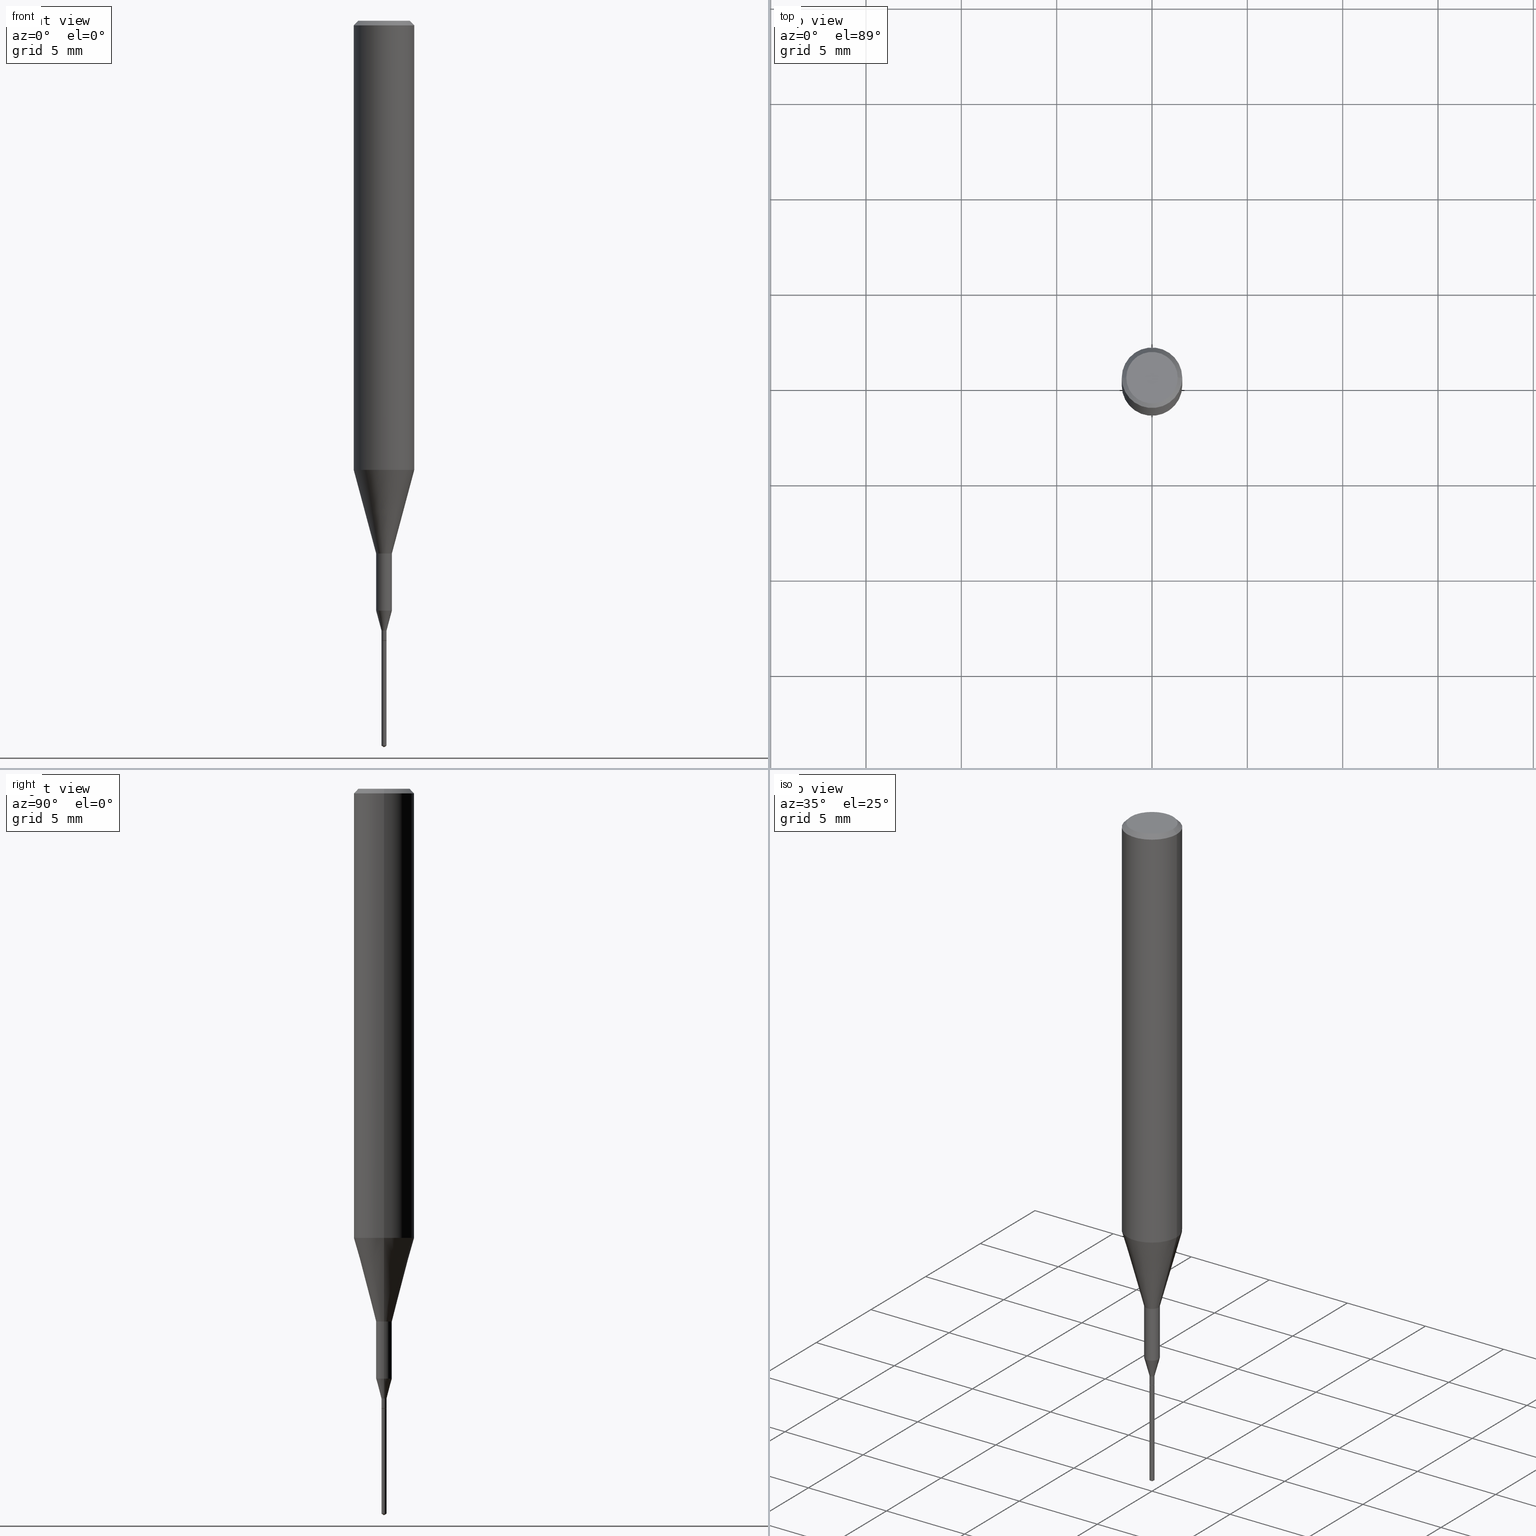
[diagram: canonical four-view strip — front | top / right | iso, engineering-drawing reading convention]
A machine part, canonical four-view strip (front | top / right | iso — engineering-drawing reading convention). The complete STEP part file that produces these views, byte-faithful:
ISO-10303-21;
HEADER;
FILE_DESCRIPTION (( 'STEP AP203' ),
    '1' );
FILE_NAME ('07093.STEP',
    '2024-04-19T13:29:51',
    ( '' ),
    ( '' ),
    'SwSTEP 2.0',
    'SolidWorks 2023',
    '' );
FILE_SCHEMA (( 'CONFIG_CONTROL_DESIGN' ));
ENDSEC;

DATA;
#1 = ORIENTED_EDGE ( 'NONE', *, *, #232, .T. ) ;
#2 = APPROVAL_DATE_TIME ( #583, #329 ) ;
#3 = CARTESIAN_POINT ( 'NONE',  ( -9.272647440831351840E-28, 1.320560130707024342E-13, 37.87007874015748143 ) ) ;
#4 = EDGE_CURVE ( 'NONE', #571, #561, #247, .T. ) ;
#5 = VERTEX_POINT ( 'NONE', #340 ) ;
#6 = CARTESIAN_POINT ( 'NONE',  ( 0.01624999999999999709, -3.954102616239861778E-15, -1.100000000000000089 ) ) ;
#7 = AXIS2_PLACEMENT_3D ( 'NONE', #9, #560, #520 ) ;
#8 = ORIENTED_EDGE ( 'NONE', *, *, #544, .F. ) ;
#9 = CARTESIAN_POINT ( 'NONE',  ( 0.000000000000000000, 0.000000000000000000, 0.000000000000000000 ) ) ;
#10 = ORIENTED_EDGE ( 'NONE', *, *, #64, .T. ) ;
#11 = DIRECTION ( 'NONE',  ( 1.000000000000000000, -6.982962677686243834E-15, 0.000000000000000000 ) ) ;
#12 = ORIENTED_EDGE ( 'NONE', *, *, #124, .F. ) ;
#13 = DIRECTION ( 'NONE',  ( -2.445468806185136597E-29, 3.491481338843145583E-15, 1.000000000000000000 ) ) ;
#14 = ADVANCED_FACE ( 'NONE', ( #433 ), #475, .F. ) ;
#15 = CARTESIAN_POINT ( 'NONE',  ( 2.267909797027042920E-29, -3.237974131778804114E-15, -0.9273926501499395458 ) ) ;
#16 = CONICAL_SURFACE ( 'NONE', #50, 65.52281426576408307, 1.029744258676625224 ) ;
#17 = VECTOR ( 'NONE', #489, 39.37007874015748143 ) ;
#18 = DIRECTION ( 'NONE',  ( 1.000000000000000000, -6.982962677686266711E-15, 4.876176775795935232E-29 ) ) ;
#19 = ORIENTED_EDGE ( 'NONE', *, *, #253, .F. ) ;
#20 = CARTESIAN_POINT ( 'NONE',  ( 3.128977337513882580E-29, -4.467350373049805126E-15, -1.279500000000000082 ) ) ;
#21 = DIRECTION ( 'NONE',  ( 1.000000000000000000, -6.982962677686265922E-15, 0.000000000000000000 ) ) ;
#22 = EDGE_CURVE ( 'NONE', #168, #323, #252, .T. ) ;
#23 = DIRECTION ( 'NONE',  ( -2.445468806185136597E-29, 3.491481338843145583E-15, 1.000000000000000000 ) ) ;
#24 = ORIENTED_EDGE ( 'NONE', *, *, #203, .F. ) ;
#25 = AXIS2_PLACEMENT_3D ( 'NONE', #451, #162, #41 ) ;
#26 = DIRECTION ( 'NONE',  ( -2.445468806185136877E-29, 3.491481338843145188E-15, 1.000000000000000000 ) ) ;
#27 = FACE_OUTER_BOUND ( 'NONE', #328, .T. ) ;
#28 = ADVANCED_FACE ( 'NONE', ( #485 ), #438, .T. ) ;
#29 = DIRECTION ( 'NONE',  ( 2.448441422466597469E-29, -3.487224383137281571E-15, -1.000000000000000000 ) ) ;
#30 = CARTESIAN_POINT ( 'NONE',  ( -0.06250000000000000000, 4.037025298037369491E-16, -0.009375000000000063838 ) ) ;
#31 = CARTESIAN_POINT ( 'NONE',  ( -0.01624999999999999709, -3.931071922978147770E-15, -1.100000000000000089 ) ) ;
#32 = ORIENTED_EDGE ( 'NONE', *, *, #337, .T. ) ;
#33 = CALENDAR_DATE ( 2024, 19, 4 ) ;
#34 = AXIS2_PLACEMENT_3D ( 'NONE', #285, #468, #379 ) ;
#35 = PRODUCT_DEFINITION_FORMATION_WITH_SPECIFIED_SOURCE ( 'ANY', '', #267, .NOT_KNOWN. ) ;
#36 = APPROVAL_DATE_TIME ( #40, #522 ) ;
#37 = EDGE_CURVE ( 'NONE', #323, #99, #349, .T. ) ;
#38 = ORIENTED_EDGE ( 'NONE', *, *, #161, .F. ) ;
#39 = ORIENTED_EDGE ( 'NONE', *, *, #586, .F. ) ;
#40 = DATE_AND_TIME ( #498, #215 ) ;
#41 = DIRECTION ( 'NONE',  ( 1.000000000000000000, -6.982962677686296687E-15, 0.000000000000000000 ) ) ;
#42 = VECTOR ( 'NONE', #26, 39.37007874015748143 ) ;
#43 = EDGE_LOOP ( 'NONE', ( #435, #10, #311, #467 ) ) ;
#44 = COORDINATED_UNIVERSAL_TIME_OFFSET ( 5, 0, .BEHIND. ) ;
#45 = CARTESIAN_POINT ( 'NONE',  ( 3.730349362744185783E-17, 0.005249999999994773604, -1.496845481750105122 ) ) ;
#46 = ORIENTED_EDGE ( 'NONE', *, *, #149, .F. ) ;
#47 = CARTESIAN_POINT ( 'NONE',  ( 0.005250000000000032419, -4.432435559661373477E-15, -1.259000000000000119 ) ) ;
#48 = ORIENTED_EDGE ( 'NONE', *, *, #488, .F. ) ;
#49 = CARTESIAN_POINT ( 'NONE',  ( 3.130200071916974821E-29, -4.469096113719226630E-15, -1.280000000000000027 ) ) ;
#50 = AXIS2_PLACEMENT_3D ( 'NONE', #3, #79, #264 ) ;
#51 = DIMENSIONAL_EXPONENTS ( 1.000000000000000000, 0.000000000000000000, 0.000000000000000000, 0.000000000000000000, 0.000000000000000000, 0.000000000000000000, 0.000000000000000000 ) ;
#52 = APPROVAL_PERSON_ORGANIZATION ( #221, #329, #461 ) ;
#53 = EDGE_LOOP ( 'NONE', ( #557, #187 ) ) ;
#54 = CARTESIAN_POINT ( 'NONE',  ( 2.267909797027042920E-29, -3.237974131778804114E-15, -0.9273926501499395458 ) ) ;
#55 = ORIENTED_EDGE ( 'NONE', *, *, #97, .F. ) ;
#56 = EDGE_CURVE ( 'NONE', #5, #142, #302, .T. ) ;
#57 = DIRECTION ( 'NONE',  ( 1.000000000000000000, -6.982962677686177569E-15, 0.000000000000000000 ) ) ;
#58 = DIRECTION ( 'NONE',  ( -2.445468806185136597E-29, 3.491481338843145583E-15, 1.000000000000000000 ) ) ;
#59 = CARTESIAN_POINT ( 'NONE',  ( 2.292627005798581499E-31, -3.273263755165471417E-17, -0.009375000000000063838 ) ) ;
#60 = CARTESIAN_POINT ( 'NONE',  ( 0.005249999999999992520, -4.504010927107658279E-15, -1.279500000000000082 ) ) ;
#61 = AXIS2_PLACEMENT_3D ( 'NONE', #66, #432, #113 ) ;
#62 = CC_DESIGN_APPROVAL ( #532, ( #35 ) ) ;
#63 = CARTESIAN_POINT ( 'NONE',  ( -0.01625000000000000056, -4.136977567789851624E-15, -1.217947441116742580 ) ) ;
#64 = EDGE_CURVE ( 'NONE', #142, #493, #487, .T. ) ;
#65 = CARTESIAN_POINT ( 'NONE',  ( -0.004750000000000000749, -4.435345333770622433E-15, -1.280000000000000027 ) ) ;
#66 = CARTESIAN_POINT ( 'NONE',  ( 3.130200071916974821E-29, -4.469096113719226630E-15, -1.280000000000000027 ) ) ;
#67 = CC_DESIGN_PERSON_AND_ORGANIZATION_ASSIGNMENT ( #220, #129, ( #267 ) ) ;
#68 = EDGE_LOOP ( 'NONE', ( #465, #32, #206, #308 ) ) ;
#69 = CYLINDRICAL_SURFACE ( 'NONE', #569, 0.005250000000000012469 ) ;
#70 = CARTESIAN_POINT ( 'NONE',  ( 0.06250000000000005551, -4.364351673553920638E-16, 3.047610484872462323E-30 ) ) ;
#71 = EDGE_CURVE ( 'NONE', #493, #99, #286, .T. ) ;
#72 = CIRCLE ( 'NONE', #244, 0.005250000000000001193 ) ;
#74 = AXIS2_PLACEMENT_3D ( 'NONE', #574, #23, #121 ) ;
#73 = CARTESIAN_POINT ( 'NONE',  ( 2.978452474824002480E-29, -4.252440762350867810E-15, -1.217947441116742580 ) ) ;
#75 = CARTESIAN_POINT ( 'NONE',  ( 0.000000000000000000, 0.000000000000000000, 0.000000000000000000 ) ) ;
#76 = DIRECTION ( 'NONE',  ( -2.448441422466597749E-29, 3.487224383137281571E-15, 1.000000000000000000 ) ) ;
#77 = CARTESIAN_POINT ( 'NONE',  ( 0.01625000000000000056, -4.365913905863269486E-15, -1.217947441116742580 ) ) ;
#78 = CARTESIAN_POINT ( 'NONE',  ( 2.292627005798581499E-31, -3.273263755165471417E-17, -0.009375000000000063838 ) ) ;
#79 = DIRECTION ( 'NONE',  ( -2.448441422466597749E-29, 3.487224383137281571E-15, 1.000000000000000000 ) ) ;
#80 = ADVANCED_BREP_SHAPE_REPRESENTATION ( '07093', ( #265, #464, #126 ), #384 ) ;
#81 = ORIENTED_EDGE ( 'NONE', *, *, #555, .T. ) ;
#82 = CONICAL_SURFACE ( 'NONE', #182, 0.01625000000000000056, 0.2617993877991494078 ) ;
#83 = AXIS2_PLACEMENT_3D ( 'NONE', #20, #534, #526 ) ;
#84 = EDGE_CURVE ( 'NONE', #561, #387, #72, .T. ) ;
#85 = COORDINATED_UNIVERSAL_TIME_OFFSET ( 5, 0, .BEHIND. ) ;
#86 =( NAMED_UNIT ( * ) PLANE_ANGLE_UNIT ( ) SI_UNIT ( $, .RADIAN. ) );
#87 = EDGE_LOOP ( 'NONE', ( #431, #81, #233, #39 ) ) ;
#88 = DIRECTION ( 'NONE',  ( -5.985567269335837150E-15, -0.8571673007020953472, 0.5150380749100822442 ) ) ;
#89 = AXIS2_PLACEMENT_3D ( 'NONE', #466, #402, #261 ) ;
#90 = ORIENTED_EDGE ( 'NONE', *, *, #299, .F. ) ;
#91 = LINE ( 'NONE', #576, #401 ) ;
#92 = ORIENTED_EDGE ( 'NONE', *, *, #299, .T. ) ;
#93 = DIRECTION ( 'NONE',  ( 1.000000000000000000, -6.982962677686177569E-15, 0.000000000000000000 ) ) ;
#94 = ORIENTED_EDGE ( 'NONE', *, *, #185, .F. ) ;
#95 = DIRECTION ( 'NONE',  ( -2.445468806185136597E-29, 3.491481338843145583E-15, 1.000000000000000000 ) ) ;
#96 = CONICAL_SURFACE ( 'NONE', #587, 0.06250000000000000000, 0.7853981633974452814 ) ;
#97 = EDGE_CURVE ( 'NONE', #101, #378, #562, .T. ) ;
#98 = CC_DESIGN_APPROVAL ( #329, ( #541 ) ) ;
#99 = VERTEX_POINT ( 'NONE', #518 ) ;
#100 = CARTESIAN_POINT ( 'NONE',  ( 0.000000000000000000, 0.000000000000000000, 0.000000000000000000 ) ) ;
#101 = VERTEX_POINT ( 'NONE', #527 ) ;
#102 = DIRECTION ( 'NONE',  ( -2.445468806185136597E-29, 3.491481338843145583E-15, 1.000000000000000000 ) ) ;
#103 = DIRECTION ( 'NONE',  ( -2.445468806185136597E-29, 3.491481338843145583E-15, 1.000000000000000000 ) ) ;
#104 = CARTESIAN_POINT ( 'NONE',  ( 3.078845226987087249E-29, -4.395775005603521113E-15, -1.259000000000000119 ) ) ;
#105 = DIRECTION ( 'NONE',  ( -2.445468806185136597E-29, 3.491481338843145583E-15, 1.000000000000000000 ) ) ;
#106 = AXIS2_PLACEMENT_3D ( 'NONE', #412, #159, #590 ) ;
#107 = CIRCLE ( 'NONE', #74, 0.01625000000000000056 ) ;
#108 = APPROVAL_PERSON_ORGANIZATION ( #315, #522, #411 ) ;
#109 = CARTESIAN_POINT ( 'NONE',  ( -0.05312499999999999861, 3.873362110279099094E-16, -5.787680772773044021E-18 ) ) ;
#110 = DIRECTION ( 'NONE',  ( -0.7071067811866128539, 7.493145998870590818E-15, 0.7071067811864821806 ) ) ;
#111 = CARTESIAN_POINT ( 'NONE',  ( 3.730349362743655767E-17, 0.005249999999995531678, -1.280000000000000027 ) ) ;
#112 = DIRECTION ( 'NONE',  ( 1.000000000000000000, -6.982962677686267499E-15, 4.876176775795935793E-29 ) ) ;
#113 = DIRECTION ( 'NONE',  ( -6.982962677686265133E-15, -1.000000000000000000, 0.000000000000000000 ) ) ;
#114 = CARTESIAN_POINT ( 'NONE',  ( 2.978452474824002480E-29, -4.252440762350867810E-15, -1.217947441116742580 ) ) ;
#115 = EDGE_CURVE ( 'NONE', #545, #274, #478, .T. ) ;
#116 = AXIS2_PLACEMENT_3D ( 'NONE', #130, #310, #225 ) ;
#118 = AXIS2_PLACEMENT_3D ( 'NONE', #54, #95, #386 ) ;
#117 = DIRECTION ( 'NONE',  ( 1.000000000000000000, -6.982962677686258033E-15, 0.000000000000000000 ) ) ;
#119 = DIRECTION ( 'NONE',  ( -6.982962677686265922E-15, -1.000000000000000000, 0.000000000000000000 ) ) ;
#120 = VERTEX_POINT ( 'NONE', #60 ) ;
#121 = DIRECTION ( 'NONE',  ( 1.000000000000000000, -6.982962677686258033E-15, 0.000000000000000000 ) ) ;
#122 = PLANE ( 'NONE',  #393 ) ;
#123 = PERSON_AND_ORGANIZATION_ROLE ( 'design_supplier' ) ;
#124 = EDGE_CURVE ( 'NONE', #99, #101, #300, .T. ) ;
#125 = DIRECTION ( 'NONE',  ( 1.000000000000000000, 0.000000000000000000, 0.000000000000000000 ) ) ;
#126 = AXIS2_PLACEMENT_3D ( 'NONE', #167, #501, #125 ) ;
#127 = APPLICATION_PROTOCOL_DEFINITION ( 'international standard', 'config_control_design', 1994, #304 ) ;
#128 = ADVANCED_FACE ( 'NONE', ( #27 ), #383, .T. ) ;
#129 = PERSON_AND_ORGANIZATION_ROLE ( 'design_owner' ) ;
#130 = CARTESIAN_POINT ( 'NONE',  ( -9.272647440831351840E-28, 1.320560130707024342E-13, 37.87007874015748143 ) ) ;
#131 = EDGE_LOOP ( 'NONE', ( #19, #282, #500 ) ) ;
#132 = COORDINATED_UNIVERSAL_TIME_OFFSET ( 5, 0, .BEHIND. ) ;
#134 = VECTOR ( 'NONE', #483, 39.37007874015748143 ) ;
#133 = DIRECTION ( 'NONE',  ( 1.000000000000000000, -6.982962677686267499E-15, 4.876176775795936353E-29 ) ) ;
#135 = VECTOR ( 'NONE', #511, 39.37007874015748143 ) ;
#136 = LOCAL_TIME ( 9, 29, 51.00000000000000000, #502 ) ;
#137 = EDGE_LOOP ( 'NONE', ( #151, #284, #421, #38 ) ) ;
#138 = CARTESIAN_POINT ( 'NONE',  ( -0.06250000000000000000, -1.191264174815165938E-15, -0.009375000000000063838 ) ) ;
#139 = ORIENTED_EDGE ( 'NONE', *, *, #115, .T. ) ;
#140 = CARTESIAN_POINT ( 'NONE',  ( -0.005249999999999992520, -4.430046879422400031E-15, -1.279500000000000082 ) ) ;
#141 = ADVANCED_FACE ( 'NONE', ( #416 ), #418, .T. ) ;
#142 = VERTEX_POINT ( 'NONE', #31 ) ;
#143 = CARTESIAN_POINT ( 'NONE',  ( 3.130200071916974821E-29, -4.469096113719226630E-15, -1.280000000000000027 ) ) ;
#144 = ADVANCED_FACE ( 'NONE', ( #509 ), #479, .T. ) ;
#145 = AXIS2_PLACEMENT_3D ( 'NONE', #301, #255, #437 ) ;
#146 = ORIENTED_EDGE ( 'NONE', *, *, #519, .F. ) ;
#147 = CARTESIAN_POINT ( 'NONE',  ( 3.130200071916974821E-29, -4.469096113719226630E-15, -1.280000000000000027 ) ) ;
#148 = CARTESIAN_POINT ( 'NONE',  ( 2.292627005798581499E-31, -3.273263755165471417E-17, -0.009375000000000063838 ) ) ;
#149 = EDGE_CURVE ( 'NONE', #378, #101, #579, .T. ) ;
#150 = CARTESIAN_POINT ( 'NONE',  ( 3.672728863519792168E-29, -5.230836574705921568E-15, -1.500000000000000222 ) ) ;
#151 = ORIENTED_EDGE ( 'NONE', *, *, #56, .F. ) ;
#152 = CARTESIAN_POINT ( 'NONE',  ( 0.000000000000000000, 0.000000000000000000, 0.000000000000000000 ) ) ;
#153 = DIRECTION ( 'NONE',  ( 1.000000000000000000, -6.982962677686266711E-15, 0.000000000000000000 ) ) ;
#154 = VECTOR ( 'NONE', #524, 39.37007874015748143 ) ;
#155 = CARTESIAN_POINT ( 'NONE',  ( 3.661133531708657202E-29, -5.225284965051344069E-15, -1.496845481750105122 ) ) ;
#156 = CARTESIAN_POINT ( 'NONE',  ( -3.666055405782159823E-17, -0.005250000000004469841, -1.280000000000000027 ) ) ;
#157 = DIRECTION ( 'NONE',  ( 0.2588190451025206840, 1.565188264969626504E-15, 0.9659258262890682012 ) ) ;
#158 = ADVANCED_FACE ( 'NONE', ( #582 ), #122, .F. ) ;
#159 = DIRECTION ( 'NONE',  ( -2.445468806185136597E-29, 3.491481338843145583E-15, 1.000000000000000000 ) ) ;
#160 =( CONVERSION_BASED_UNIT ( 'INCH', #207 ) LENGTH_UNIT ( ) NAMED_UNIT ( #51 ) );
#161 = EDGE_CURVE ( 'NONE', #142, #323, #535, .T. ) ;
#162 = DIRECTION ( 'NONE',  ( -2.445468806185136597E-29, 3.491481338843145583E-15, 1.000000000000000000 ) ) ;
#163 = EDGE_LOOP ( 'NONE', ( #419, #92, #405, #358 ) ) ;
#164 = LOCAL_TIME ( 9, 29, 51.00000000000000000, #85 ) ;
#165 = FACE_OUTER_BOUND ( 'NONE', #459, .T. ) ;
#166 = ADVANCED_FACE ( 'NONE', ( #537 ), #16, .T. ) ;
#167 = CARTESIAN_POINT ( 'NONE',  ( 0.000000000000000000, 0.000000000000000000, 0.000000000000000000 ) ) ;
#168 = VERTEX_POINT ( 'NONE', #77 ) ;
#169 = CC_DESIGN_PERSON_AND_ORGANIZATION_ASSIGNMENT ( #361, #584, ( #35 ) ) ;
#170 = SHAPE_DEFINITION_REPRESENTATION ( #218, #80 ) ;
#171 = CALENDAR_DATE ( 2024, 19, 4 ) ;
#172 = AXIS2_PLACEMENT_3D ( 'NONE', #338, #58, #112 ) ;
#173 = CONICAL_SURFACE ( 'NONE', #268, 0.06250000000000000000, 0.7853981633974452814 ) ;
#174 = ORIENTED_EDGE ( 'NONE', *, *, #22, .F. ) ;
#175 = APPROVAL_DATE_TIME ( #456, #532 ) ;
#176 = FACE_OUTER_BOUND ( 'NONE', #163, .T. ) ;
#177 = ORIENTED_EDGE ( 'NONE', *, *, #64, .F. ) ;
#178 = PERSON_AND_ORGANIZATION ( #391, #246 ) ;
#179 = CARTESIAN_POINT ( 'NONE',  ( 0.004750000000000000749, -4.502265186438235986E-15, -1.280000000000000027 ) ) ;
#180 = ORIENTED_EDGE ( 'NONE', *, *, #586, .T. ) ;
#182 = AXIS2_PLACEMENT_3D ( 'NONE', #327, #365, #278 ) ;
#181 = CARTESIAN_POINT ( 'NONE',  ( 3.130200071916974821E-29, -4.469096113719226630E-15, -1.280000000000000027 ) ) ;
#183 = AXIS2_PLACEMENT_3D ( 'NONE', #531, #442, #389 ) ;
#184 = ORIENTED_EDGE ( 'NONE', *, *, #488, .T. ) ;
#185 = EDGE_CURVE ( 'NONE', #200, #120, #91, .T. ) ;
#186 = DIRECTION ( 'NONE',  ( 1.000000000000000000, -6.982962677686177569E-15, 0.000000000000000000 ) ) ;
#187 = ORIENTED_EDGE ( 'NONE', *, *, #575, .T. ) ;
#188 = LINE ( 'NONE', #150, #135 ) ;
#189 = ORIENTED_EDGE ( 'NONE', *, *, #319, .T. ) ;
#190 = DIRECTION ( 'NONE',  ( -2.445468806185136597E-29, 3.491481338843145583E-15, 1.000000000000000000 ) ) ;
#191 = EDGE_CURVE ( 'NONE', #571, #262, #356, .T. ) ;
#192 = AXIS2_PLACEMENT_3D ( 'NONE', #15, #105, #21 ) ;
#193 = CIRCLE ( 'NONE', #372, 0.004750000000000000749 ) ;
#194 = ORIENTED_EDGE ( 'NONE', *, *, #450, .F. ) ;
#195 = CARTESIAN_POINT ( 'NONE',  ( 3.672662133699897044E-29, -5.230836574705923146E-15, -1.500000000000000222 ) ) ;
#196 = DIRECTION ( 'NONE',  ( 0.2588190451025214611, 1.565188264969620982E-15, 0.9659258262890679791 ) ) ;
#197 = CARTESIAN_POINT ( 'NONE',  ( 0.06250000000000000000, -4.615137624123754923E-16, -0.009375000000000063838 ) ) ;
#198 = ORIENTED_EDGE ( 'NONE', *, *, #476, .T. ) ;
#199 = LINE ( 'NONE', #197, #224 ) ;
#200 = VERTEX_POINT ( 'NONE', #179 ) ;
#201 = CIRCLE ( 'NONE', #335, 0.005250000000000032419 ) ;
#202 = CIRCLE ( 'NONE', #409, 0.01625000000000000056 ) ;
#203 = EDGE_CURVE ( 'NONE', #512, #279, #515, .T. ) ;
#204 = EDGE_LOOP ( 'NONE', ( #290, #370, #333, #236 ) ) ;
#205 =( LENGTH_UNIT ( ) NAMED_UNIT ( * ) SI_UNIT ( $, .METRE. ) );
#206 = ORIENTED_EDGE ( 'NONE', *, *, #185, .T. ) ;
#207 = LENGTH_MEASURE_WITH_UNIT ( LENGTH_MEASURE( 0.02539999999999999897 ), #205 );
#208 = LINE ( 'NONE', #505, #506 ) ;
#209 = CARTESIAN_POINT ( 'NONE',  ( 0.005250000000000012469, -3.666055405785299243E-17, 2.559992807292872317E-31 ) ) ;
#210 = EDGE_CURVE ( 'NONE', #493, #378, #208, .T. ) ;
#211 = DIRECTION ( 'NONE',  ( 1.000000000000000000, -6.982962677686259611E-15, 0.000000000000000000 ) ) ;
#212 = AXIS2_PLACEMENT_3D ( 'NONE', #75, #550, #533 ) ;
#213 = AXIS2_PLACEMENT_3D ( 'NONE', #523, #472, #293 ) ;
#214 = EDGE_LOOP ( 'NONE', ( #454, #377, #8 ) ) ;
#215 = LOCAL_TIME ( 9, 29, 51.00000000000000000, #325 ) ;
#216 = CC_DESIGN_PERSON_AND_ORGANIZATION_ASSIGNMENT ( #178, #368, ( #541 ) ) ;
#217 = PERSON_AND_ORGANIZATION ( #391, #246 ) ;
#218 = PRODUCT_DEFINITION_SHAPE ( 'NONE', 'NONE',  #541 ) ;
#219 = ORIENTED_EDGE ( 'NONE', *, *, #56, .T. ) ;
#220 = PERSON_AND_ORGANIZATION ( #391, #246 ) ;
#221 = PERSON_AND_ORGANIZATION ( #391, #246 ) ;
#222 = VECTOR ( 'NONE', #342, 39.37007874015748143 ) ;
#223 = ADVANCED_FACE ( 'NONE', ( #165 ), #441, .T. ) ;
#224 = VECTOR ( 'NONE', #539, 39.37007874015748143 ) ;
#225 = DIRECTION ( 'NONE',  ( -6.982962677686265133E-15, -1.000000000000000000, 3.468864327941824562E-15 ) ) ;
#226 = EDGE_LOOP ( 'NONE', ( #381, #184, #559, #446 ) ) ;
#227 = DATE_TIME_ROLE ( 'creation_date' ) ;
#228 = FACE_OUTER_BOUND ( 'NONE', #469, .T. ) ;
#229 = EDGE_CURVE ( 'NONE', #120, #274, #245, .T. ) ;
#230 = ORIENTED_EDGE ( 'NONE', *, *, #71, .T. ) ;
#231 = CARTESIAN_POINT ( 'NONE',  ( 3.665052236019357010E-29, -5.241734381312934415E-15, -1.500000000000000222 ) ) ;
#232 = EDGE_CURVE ( 'NONE', #237, #317, #257, .T. ) ;
#233 = ORIENTED_EDGE ( 'NONE', *, *, #232, .F. ) ;
#234 = DIRECTION ( 'NONE',  ( 1.000000000000000000, -6.982962677686177569E-15, 0.000000000000000000 ) ) ;
#235 = CIRCLE ( 'NONE', #295, 0.01624999999999999709 ) ;
#236 = ORIENTED_EDGE ( 'NONE', *, *, #496, .F. ) ;
#237 = VERTEX_POINT ( 'NONE', #47 ) ;
#238 = FACE_OUTER_BOUND ( 'NONE', #68, .T. ) ;
#239 = ORIENTED_EDGE ( 'NONE', *, *, #84, .T. ) ;
#240 = ADVANCED_FACE ( 'NONE', ( #176 ), #82, .T. ) ;
#241 = DIRECTION ( 'NONE',  ( 1.000000000000000000, -6.982962677686265922E-15, 0.000000000000000000 ) ) ;
#242 = DIRECTION ( 'NONE',  ( -2.445468806185136877E-29, 3.491481338843145188E-15, 1.000000000000000000 ) ) ;
#243 = LINE ( 'NONE', #63, #543 ) ;
#244 = AXIS2_PLACEMENT_3D ( 'NONE', #346, #297, #385 ) ;
#245 = CIRCLE ( 'NONE', #25, 0.005249999999999992520 ) ;
#246 = ORGANIZATION ( 'UNSPECIFIED', 'UNSPECIFIED', '' ) ;
#247 = LINE ( 'NONE', #156, #134 ) ;
#248 = DIRECTION ( 'NONE',  ( -0.2588190451025206840, 5.211531920934545520E-15, 0.9659258262890682012 ) ) ;
#249 = APPLICATION_CONTEXT ( 'configuration controlled 3d designs of mechanical parts and assemblies' ) ;
#250 = ORIENTED_EDGE ( 'NONE', *, *, #4, .T. ) ;
#251 = LINE ( 'NONE', #111, #471 ) ;
#252 = LINE ( 'NONE', #292, #222 ) ;
#253 = EDGE_CURVE ( 'NONE', #417, #571, #547, .T. ) ;
#254 = ORIENTED_EDGE ( 'NONE', *, *, #439, .F. ) ;
#255 = DIRECTION ( 'NONE',  ( -2.445468806185136597E-29, 3.491481338843145583E-15, 1.000000000000000000 ) ) ;
#256 = DIRECTION ( 'NONE',  ( -2.445468806185136877E-29, 3.491481338843145188E-15, 1.000000000000000000 ) ) ;
#257 = CIRCLE ( 'NONE', #106, 0.005250000000000032419 ) ;
#258 = CARTESIAN_POINT ( 'NONE',  ( -0.004750000000000000749, -4.432696106596511232E-15, -1.280000000000000027 ) ) ;
#259 = DIRECTION ( 'NONE',  ( -2.448441422466597749E-29, 3.487224383137281571E-15, 1.000000000000000000 ) ) ;
#260 = CARTESIAN_POINT ( 'NONE',  ( -3.666055405782159823E-17, -0.005250000000004469841, -1.280000000000000027 ) ) ;
#261 = DIRECTION ( 'NONE',  ( 1.000000000000000000, -6.982962677686266711E-15, 4.875930095424100059E-29 ) ) ;
#262 = VERTEX_POINT ( 'NONE', #45 ) ;
#263 = CC_DESIGN_DATE_AND_TIME_ASSIGNMENT ( #272, #227, ( #541 ) ) ;
#264 = DIRECTION ( 'NONE',  ( -6.982962677686265133E-15, -1.000000000000000000, 3.468864327941824562E-15 ) ) ;
#265 = MANIFOLD_SOLID_BREP ( 'Body-Move/Copy2[1]', #449 ) ;
#266 = AXIS2_PLACEMENT_3D ( 'NONE', #394, #395, #568 ) ;
#267 = PRODUCT ( '07093', '07093', '', ( #320 ) ) ;
#268 = AXIS2_PLACEMENT_3D ( 'NONE', #78, #354, #343 ) ;
#269 = EDGE_LOOP ( 'NONE', ( #288, #198, #180, #90 ) ) ;
#270 = APPROVAL_STATUS ( 'not_yet_approved' ) ;
#271 = ORIENTED_EDGE ( 'NONE', *, *, #210, .F. ) ;
#272 = DATE_AND_TIME ( #171, #452 ) ;
#273 = ADVANCED_FACE ( 'NONE', ( #228 ), #353, .T. ) ;
#274 = VERTEX_POINT ( 'NONE', #140 ) ;
#275 = APPROVAL_STATUS ( 'not_yet_approved' ) ;
#276 = VECTOR ( 'NONE', #242, 39.37007874015748143 ) ;
#277 = AXIS2_PLACEMENT_3D ( 'NONE', #49, #376, #234 ) ;
#278 = DIRECTION ( 'NONE',  ( 1.000000000000000000, -6.982962677686258033E-15, 0.000000000000000000 ) ) ;
#279 = VERTEX_POINT ( 'NONE', #291 ) ;
#280 = DIRECTION ( 'NONE',  ( 0.7071067811866128539, -2.468850131082941397E-15, 0.7071067811864821806 ) ) ;
#281 = ADVANCED_FACE ( 'NONE', ( #423 ), #96, .T. ) ;
#282 = ORIENTED_EDGE ( 'NONE', *, *, #352, .T. ) ;
#283 = DIRECTION ( 'NONE',  ( 1.000000000000000000, -6.982962677686259611E-15, 0.000000000000000000 ) ) ;
#284 = ORIENTED_EDGE ( 'NONE', *, *, #529, .T. ) ;
#286 = CIRCLE ( 'NONE', #192, 0.06250000000000011102 ) ;
#285 = CARTESIAN_POINT ( 'NONE',  ( 3.130200071916974821E-29, -4.469096113719226630E-15, -1.280000000000000027 ) ) ;
#287 = CONICAL_SURFACE ( 'NONE', #516, 0.004750000000000000749, 0.7853981633975407606 ) ;
#288 = ORIENTED_EDGE ( 'NONE', *, *, #555, .F. ) ;
#289 = CARTESIAN_POINT ( 'NONE',  ( 2.267909797027042920E-29, -3.237974131778804114E-15, -0.9273926501499395458 ) ) ;
#290 = ORIENTED_EDGE ( 'NONE', *, *, #575, .F. ) ;
#291 = CARTESIAN_POINT ( 'NONE',  ( 0.05312499999999999861, -4.129888592719939842E-16, -5.787680772767651417E-18 ) ) ;
#292 = CARTESIAN_POINT ( 'NONE',  ( 0.01624999999999999709, -1.134731435124018242E-16, 7.923787260668394963E-31 ) ) ;
#293 = DIRECTION ( 'NONE',  ( -6.982962677686265133E-15, -1.000000000000000000, 0.000000000000000000 ) ) ;
#294 = AXIS2_PLACEMENT_3D ( 'NONE', #305, #259, #119 ) ;
#295 = AXIS2_PLACEMENT_3D ( 'NONE', #427, #190, #283 ) ;
#296 = CC_DESIGN_SECURITY_CLASSIFICATION ( #373, ( #35 ) ) ;
#297 = DIRECTION ( 'NONE',  ( -2.448441422466597749E-29, 3.487224383137281571E-15, 1.000000000000000000 ) ) ;
#298 = DIRECTION ( 'NONE',  ( -6.982962677686265922E-15, -1.000000000000000000, 0.000000000000000000 ) ) ;
#299 = EDGE_CURVE ( 'NONE', #317, #237, #201, .T. ) ;
#300 = LINE ( 'NONE', #70, #324 ) ;
#301 = CARTESIAN_POINT ( 'NONE',  ( 1.415359278996747967E-46, -2.020757941330909984E-32, -5.787680772770392401E-18 ) ) ;
#302 = LINE ( 'NONE', #564, #276 ) ;
#303 = DIRECTION ( 'NONE',  ( -2.448441422466597749E-29, 3.487224383137281571E-15, 1.000000000000000000 ) ) ;
#304 = APPLICATION_CONTEXT ( 'configuration controlled 3d designs of mechanical parts and assemblies' ) ;
#305 = CARTESIAN_POINT ( 'NONE',  ( 3.661133531708657202E-29, -5.225284965051344069E-15, -1.496845481750105122 ) ) ;
#306 = VECTOR ( 'NONE', #110, 39.37007874015748143 ) ;
#307 = ADVANCED_FACE ( 'NONE', ( #425 ), #332, .T. ) ;
#308 = ORIENTED_EDGE ( 'NONE', *, *, #476, .F. ) ;
#309 = DIRECTION ( 'NONE',  ( 1.000000000000000000, -6.982962677686265922E-15, 4.876176775795935793E-29 ) ) ;
#310 = DIRECTION ( 'NONE',  ( -2.448441422466597749E-29, 3.487224383137281571E-15, 1.000000000000000000 ) ) ;
#311 = ORIENTED_EDGE ( 'NONE', *, *, #326, .F. ) ;
#312 = FACE_OUTER_BOUND ( 'NONE', #269, .T. ) ;
#313 = CARTESIAN_POINT ( 'NONE',  ( 2.690015686803650369E-29, -3.840629472727460101E-15, -1.100000000000000089 ) ) ;
#314 = ORIENTED_EDGE ( 'NONE', *, *, #519, .T. ) ;
#315 = PERSON_AND_ORGANIZATION ( #391, #246 ) ;
#316 = VECTOR ( 'NONE', #347, 39.37007874015748143 ) ;
#317 = VERTEX_POINT ( 'NONE', #556 ) ;
#318 = APPROVAL_ROLE ( '' ) ;
#319 = EDGE_CURVE ( 'NONE', #317, #5, #243, .T. ) ;
#320 = MECHANICAL_CONTEXT ( 'NONE', #304, 'mechanical' ) ;
#321 = CC_DESIGN_DATE_AND_TIME_ASSIGNMENT ( #455, #585, ( #373 ) ) ;
#322 = CARTESIAN_POINT ( 'NONE',  ( 3.130200071916974821E-29, -4.469096113719226630E-15, -1.280000000000000027 ) ) ;
#323 = VERTEX_POINT ( 'NONE', #6 ) ;
#324 = VECTOR ( 'NONE', #256, 39.37007874015748143 ) ;
#325 = COORDINATED_UNIVERSAL_TIME_OFFSET ( 5, 0, .BEHIND. ) ;
#326 = EDGE_CURVE ( 'NONE', #99, #493, #508, .T. ) ;
#327 = CARTESIAN_POINT ( 'NONE',  ( 2.978452474824002480E-29, -4.252440762350867810E-15, -1.217947441116742580 ) ) ;
#328 = EDGE_LOOP ( 'NONE', ( #1, #189, #146, #254 ) ) ;
#329 = APPROVAL ( #275, 'UNSPECIFIED' ) ;
#330 = FACE_OUTER_BOUND ( 'NONE', #226, .T. ) ;
#331 = ORIENTED_EDGE ( 'NONE', *, *, #326, .T. ) ;
#332 = CYLINDRICAL_SURFACE ( 'NONE', #213, 0.005250000000000001193 ) ;
#333 = ORIENTED_EDGE ( 'NONE', *, *, #97, .T. ) ;
#335 = AXIS2_PLACEMENT_3D ( 'NONE', #104, #341, #11 ) ;
#334 = PLANE ( 'NONE',  #345 ) ;
#336 = CIRCLE ( 'NONE', #83, 0.005249999999999992520 ) ;
#337 = EDGE_CURVE ( 'NONE', #545, #200, #480, .T. ) ;
#338 = CARTESIAN_POINT ( 'NONE',  ( 0.000000000000000000, 0.000000000000000000, 0.000000000000000000 ) ) ;
#339 = CYLINDRICAL_SURFACE ( 'NONE', #7, 0.06250000000000005551 ) ;
#340 = CARTESIAN_POINT ( 'NONE',  ( -0.01625000000000000056, -4.136977567789851624E-15, -1.217947441116742580 ) ) ;
#341 = DIRECTION ( 'NONE',  ( -2.445468806185136597E-29, 3.491481338843145583E-15, 1.000000000000000000 ) ) ;
#342 = DIRECTION ( 'NONE',  ( -2.445468806185136877E-29, 3.491481338843145188E-15, 1.000000000000000000 ) ) ;
#343 = DIRECTION ( 'NONE',  ( -1.000000000000000000, 6.982962677686266711E-15, 0.000000000000000000 ) ) ;
#344 = VECTOR ( 'NONE', #196, 39.37007874015748143 ) ;
#345 = AXIS2_PLACEMENT_3D ( 'NONE', #572, #392, #309 ) ;
#346 = CARTESIAN_POINT ( 'NONE',  ( 3.130200071916974821E-29, -4.469096113719226630E-15, -1.280000000000000027 ) ) ;
#347 = DIRECTION ( 'NONE',  ( -2.445468806185136877E-29, 3.491481338843145188E-15, 1.000000000000000000 ) ) ;
#348 = ADVANCED_FACE ( 'NONE', ( #374 ), #460, .T. ) ;
#349 = LINE ( 'NONE', #530, #344 ) ;
#350 = CARTESIAN_POINT ( 'NONE',  ( 0.01625000000000000056, -4.365913905863269486E-15, -1.217947441116742580 ) ) ;
#351 = DESIGN_CONTEXT ( 'detailed design', #249, 'design' ) ;
#352 = EDGE_CURVE ( 'NONE', #417, #262, #188, .T. ) ;
#353 = CYLINDRICAL_SURFACE ( 'NONE', #470, 0.06250000000000005551 ) ;
#354 = DIRECTION ( 'NONE',  ( 2.445468806185136597E-29, -3.491481338843145583E-15, -1.000000000000000000 ) ) ;
#355 = DIRECTION ( 'NONE',  ( 1.000000000000000000, -6.982962677686258033E-15, 0.000000000000000000 ) ) ;
#356 = CIRCLE ( 'NONE', #294, 0.005249999999999999459 ) ;
#357 = CIRCLE ( 'NONE', #490, 0.005249999999999999459 ) ;
#358 = ORIENTED_EDGE ( 'NONE', *, *, #529, .F. ) ;
#359 = DIRECTION ( 'NONE',  ( -2.445468806185136597E-29, 3.491481338843145583E-15, 1.000000000000000000 ) ) ;
#360 = DIRECTION ( 'NONE',  ( -2.445468806185136597E-29, 3.491481338843145583E-15, 1.000000000000000000 ) ) ;
#361 = PERSON_AND_ORGANIZATION ( #391, #246 ) ;
#362 = ORIENTED_EDGE ( 'NONE', *, *, #450, .T. ) ;
#363 = APPROVAL_STATUS ( 'not_yet_approved' ) ;
#364 = CONICAL_SURFACE ( 'NONE', #183, 0.06250000000000011102, 0.2617993877991501850 ) ;
#365 = DIRECTION ( 'NONE',  ( -2.445468806185136597E-29, 3.491481338843145583E-15, 1.000000000000000000 ) ) ;
#366 = ADVANCED_FACE ( 'NONE', ( #238 ), #287, .T. ) ;
#367 = ORIENTED_EDGE ( 'NONE', *, *, #413, .T. ) ;
#368 = PERSON_AND_ORGANIZATION_ROLE ( 'creator' ) ;
#369 = DIRECTION ( 'NONE',  ( -2.445468806185136877E-29, 3.491481338843145188E-15, 1.000000000000000000 ) ) ;
#370 = ORIENTED_EDGE ( 'NONE', *, *, #504, .T. ) ;
#371 = AXIS2_PLACEMENT_3D ( 'NONE', #445, #540, #463 ) ;
#372 = AXIS2_PLACEMENT_3D ( 'NONE', #143, #477, #186 ) ;
#373 = SECURITY_CLASSIFICATION ( '', '', #453 ) ;
#374 = FACE_OUTER_BOUND ( 'NONE', #577, .T. ) ;
#375 = EDGE_LOOP ( 'NONE', ( #399, #447 ) ) ;
#376 = DIRECTION ( 'NONE',  ( -2.445468806185136597E-29, 3.491481338843145583E-15, 1.000000000000000000 ) ) ;
#377 = ORIENTED_EDGE ( 'NONE', *, *, #253, .T. ) ;
#378 = VERTEX_POINT ( 'NONE', #138 ) ;
#379 = DIRECTION ( 'NONE',  ( -6.982962677686265133E-15, -1.000000000000000000, 0.000000000000000000 ) ) ;
#380 = EDGE_CURVE ( 'NONE', #323, #142, #235, .T. ) ;
#381 = ORIENTED_EDGE ( 'NONE', *, *, #191, .T. ) ;
#383 = CONICAL_SURFACE ( 'NONE', #551, 0.01625000000000000056, 0.2617993877991494078 ) ;
#382 = CARTESIAN_POINT ( 'NONE',  ( 3.730349362744189480E-17, 0.005249999999995531678, -1.280000000000000027 ) ) ;
#384 =( GEOMETRIC_REPRESENTATION_CONTEXT ( 3 ) GLOBAL_UNCERTAINTY_ASSIGNED_CONTEXT ( ( #444 ) ) GLOBAL_UNIT_ASSIGNED_CONTEXT ( ( #160, #86, #546 ) ) REPRESENTATION_CONTEXT ( 'NONE', 'WORKASPACE' ) );
#385 = DIRECTION ( 'NONE',  ( -6.982962677686265133E-15, -1.000000000000000000, 0.000000000000000000 ) ) ;
#386 = DIRECTION ( 'NONE',  ( 1.000000000000000000, -6.982962677686265922E-15, 0.000000000000000000 ) ) ;
#387 = VERTEX_POINT ( 'NONE', #382 ) ;
#388 = ADVANCED_FACE ( 'NONE', ( #330 ), #563, .T. ) ;
#389 = DIRECTION ( 'NONE',  ( 1.000000000000000000, -6.982962677686265922E-15, 0.000000000000000000 ) ) ;
#390 = ORIENTED_EDGE ( 'NONE', *, *, #37, .T. ) ;
#391 = PERSON ( 'UNSPECIFIED', 'UNSPECIFIED', 'UNSPECIFIED', ('UNSPECIFIED'), ('UNSPECIFIED'), ('UNSPECIFIED') ) ;
#392 = DIRECTION ( 'NONE',  ( -2.438088387897960049E-29, 3.491481338843145188E-15, 1.000000000000000000 ) ) ;
#393 = AXIS2_PLACEMENT_3D ( 'NONE', #322, #29, #497 ) ;
#394 = CARTESIAN_POINT ( 'NONE',  ( 7.076796394983739835E-47, -1.010378970665454992E-32, -2.893840386385196200E-18 ) ) ;
#395 = DIRECTION ( 'NONE',  ( 2.438088387897960049E-29, -3.491481338843145188E-15, -1.000000000000000000 ) ) ;
#396 = LINE ( 'NONE', #350, #429 ) ;
#397 = CC_DESIGN_PERSON_AND_ORGANIZATION_ASSIGNMENT ( #549, #407, ( #373 ) ) ;
#398 = CARTESIAN_POINT ( 'NONE',  ( 0.000000000000000000, 0.000000000000000000, 0.000000000000000000 ) ) ;
#399 = ORIENTED_EDGE ( 'NONE', *, *, #413, .F. ) ;
#400 = FACE_OUTER_BOUND ( 'NONE', #43, .T. ) ;
#401 = VECTOR ( 'NONE', #280, 39.37007874015748143 ) ;
#402 = DIRECTION ( 'NONE',  ( -2.445468806185136597E-29, 3.491481338843145583E-15, 1.000000000000000000 ) ) ;
#403 = APPROVAL_PERSON_ORGANIZATION ( #217, #532, #318 ) ;
#404 = ADVANCED_FACE ( 'NONE', ( #420 ), #339, .T. ) ;
#405 = ORIENTED_EDGE ( 'NONE', *, *, #439, .T. ) ;
#406 = APPLICATION_PROTOCOL_DEFINITION ( 'international standard', 'config_control_design', 1994, #249 ) ;
#407 = PERSON_AND_ORGANIZATION_ROLE ( 'classification_officer' ) ;
#408 = AXIS2_PLACEMENT_3D ( 'NONE', #398, #360, #133 ) ;
#409 = AXIS2_PLACEMENT_3D ( 'NONE', #73, #359, #117 ) ;
#410 = ORIENTED_EDGE ( 'NONE', *, *, #149, .T. ) ;
#411 = APPROVAL_ROLE ( '' ) ;
#412 = CARTESIAN_POINT ( 'NONE',  ( 3.078845226987087249E-29, -4.395775005603521113E-15, -1.259000000000000119 ) ) ;
#413 = EDGE_CURVE ( 'NONE', #200, #545, #193, .T. ) ;
#414 = EDGE_LOOP ( 'NONE', ( #239, #362 ) ) ;
#415 = PERSON_AND_ORGANIZATION ( #391, #246 ) ;
#416 = FACE_OUTER_BOUND ( 'NONE', #137, .T. ) ;
#417 = VERTEX_POINT ( 'NONE', #195 ) ;
#418 = CYLINDRICAL_SURFACE ( 'NONE', #212, 0.01624999999999999709 ) ;
#419 = ORIENTED_EDGE ( 'NONE', *, *, #319, .F. ) ;
#420 = FACE_OUTER_BOUND ( 'NONE', #473, .T. ) ;
#421 = ORIENTED_EDGE ( 'NONE', *, *, #22, .T. ) ;
#422 = ADVANCED_FACE ( 'NONE', ( #565 ), #536, .T. ) ;
#423 = FACE_OUTER_BOUND ( 'NONE', #553, .T. ) ;
#424 = ORIENTED_EDGE ( 'NONE', *, *, #229, .F. ) ;
#425 = FACE_OUTER_BOUND ( 'NONE', #566, .T. ) ;
#426 = CARTESIAN_POINT ( 'NONE',  ( -0.06250000000000011102, -2.793884921928740709E-15, -0.9273926501499395458 ) ) ;
#428 = CLOSED_SHELL ( 'NONE', ( #443, #404, #457, #223, #128, #28, #422, #430, #366, #538, #240, #141, #348, #273, #281, #14 ) ) ;
#427 = CARTESIAN_POINT ( 'NONE',  ( 2.690015686803650369E-29, -3.840629472727460101E-15, -1.100000000000000089 ) ) ;
#429 = VECTOR ( 'NONE', #157, 39.37007874015748854 ) ;
#430 = ADVANCED_FACE ( 'NONE', ( #558 ), #334, .F. ) ;
#431 = ORIENTED_EDGE ( 'NONE', *, *, #229, .T. ) ;
#432 = DIRECTION ( 'NONE',  ( -2.448441422466597749E-29, 3.487224383137281571E-15, 1.000000000000000000 ) ) ;
#433 = FACE_OUTER_BOUND ( 'NONE', #53, .T. ) ;
#434 = LINE ( 'NONE', #30, #17 ) ;
#435 = ORIENTED_EDGE ( 'NONE', *, *, #380, .T. ) ;
#436 = ORIENTED_EDGE ( 'NONE', *, *, #71, .F. ) ;
#437 = DIRECTION ( 'NONE',  ( 1.000000000000000000, -6.982962677686266711E-15, 4.875930095424100059E-29 ) ) ;
#438 = CYLINDRICAL_SURFACE ( 'NONE', #172, 0.005250000000000012469 ) ;
#439 = EDGE_CURVE ( 'NONE', #237, #168, #396, .T. ) ;
#440 = LINE ( 'NONE', #484, #316 ) ;
#441 = CYLINDRICAL_SURFACE ( 'NONE', #408, 0.01624999999999999709 ) ;
#442 = DIRECTION ( 'NONE',  ( -2.445468806185136597E-29, 3.491481338843145583E-15, 1.000000000000000000 ) ) ;
#443 = ADVANCED_FACE ( 'NONE', ( #570 ), #173, .T. ) ;
#444 = UNCERTAINTY_MEASURE_WITH_UNIT (LENGTH_MEASURE( 1.000000000000000082E-05 ), #160, 'distance_accuracy_value', 'NONE');
#445 = CARTESIAN_POINT ( 'NONE',  ( 2.292627005798581499E-31, -3.273263755165471417E-17, -0.009375000000000063838 ) ) ;
#446 = ORIENTED_EDGE ( 'NONE', *, *, #4, .F. ) ;
#447 = ORIENTED_EDGE ( 'NONE', *, *, #337, .F. ) ;
#448 = CALENDAR_DATE ( 2024, 19, 4 ) ;
#449 = CLOSED_SHELL ( 'NONE', ( #388, #144, #166, #307, #158 ) ) ;
#450 = EDGE_CURVE ( 'NONE', #387, #561, #588, .T. ) ;
#451 = CARTESIAN_POINT ( 'NONE',  ( 3.128977337513882580E-29, -4.467350373049805126E-15, -1.279500000000000082 ) ) ;
#452 = LOCAL_TIME ( 9, 29, 51.00000000000000000, #44 ) ;
#453 = SECURITY_CLASSIFICATION_LEVEL ( 'unclassified' ) ;
#454 = ORIENTED_EDGE ( 'NONE', *, *, #352, .F. ) ;
#455 = DATE_AND_TIME ( #542, #482 ) ;
#456 = DATE_AND_TIME ( #448, #136 ) ;
#457 = ADVANCED_FACE ( 'NONE', ( #400 ), #364, .T. ) ;
#458 = AXIS2_PLACEMENT_3D ( 'NONE', #313, #495, #211 ) ;
#459 = EDGE_LOOP ( 'NONE', ( #314, #219, #507, #174 ) ) ;
#460 = CONICAL_SURFACE ( 'NONE', #581, 0.06250000000000011102, 0.2617993877991501850 ) ;
#461 = APPROVAL_ROLE ( '' ) ;
#462 = CC_DESIGN_PERSON_AND_ORGANIZATION_ASSIGNMENT ( #415, #123, ( #35 ) ) ;
#463 = DIRECTION ( 'NONE',  ( 1.000000000000000000, -6.982962677686266711E-15, 0.000000000000000000 ) ) ;
#464 = MANIFOLD_SOLID_BREP ( 'Body-Move/Copy2[2]', #428 ) ;
#465 = ORIENTED_EDGE ( 'NONE', *, *, #115, .F. ) ;
#466 = CARTESIAN_POINT ( 'NONE',  ( 1.415359278996747967E-46, -2.020757941330909984E-32, -5.787680772770392401E-18 ) ) ;
#467 = ORIENTED_EDGE ( 'NONE', *, *, #37, .F. ) ;
#468 = DIRECTION ( 'NONE',  ( -2.448441422466597749E-29, 3.487224383137281571E-15, 1.000000000000000000 ) ) ;
#469 = EDGE_LOOP ( 'NONE', ( #271, #230, #510, #46 ) ) ;
#470 = AXIS2_PLACEMENT_3D ( 'NONE', #100, #517, #18 ) ;
#471 = VECTOR ( 'NONE', #303, 39.37007874015748143 ) ;
#472 = DIRECTION ( 'NONE',  ( -2.448441422466597749E-29, 3.487224383137281571E-15, 1.000000000000000000 ) ) ;
#473 = EDGE_LOOP ( 'NONE', ( #331, #514, #55, #12 ) ) ;
#474 = DIRECTION ( 'NONE',  ( -1.000000000000000000, 6.982962677686266711E-15, 0.000000000000000000 ) ) ;
#475 = PLANE ( 'NONE',  #266 ) ;
#476 = EDGE_CURVE ( 'NONE', #274, #120, #336, .T. ) ;
#477 = DIRECTION ( 'NONE',  ( -2.445468806185136597E-29, 3.491481338843145583E-15, 1.000000000000000000 ) ) ;
#478 = LINE ( 'NONE', #65, #306 ) ;
#479 = CONICAL_SURFACE ( 'NONE', #116, 65.52281426576408307, 1.029744258676625224 ) ;
#481 = DIRECTION ( 'NONE',  ( 2.445468806185136597E-29, -3.491481338843145583E-15, -1.000000000000000000 ) ) ;
#480 = CIRCLE ( 'NONE', #552, 0.004750000000000000749 ) ;
#482 = LOCAL_TIME ( 9, 29, 51.00000000000000000, #132 ) ;
#483 = DIRECTION ( 'NONE',  ( -2.448441422466597749E-29, 3.487224383137281571E-15, 1.000000000000000000 ) ) ;
#484 = CARTESIAN_POINT ( 'NONE',  ( -0.005250000000000012469, 3.730349362740534836E-17, -2.582440922383831529E-31 ) ) ;
#485 = FACE_OUTER_BOUND ( 'NONE', #87, .T. ) ;
#486 = CARTESIAN_POINT ( 'NONE',  ( -0.06250000000000011102, -2.793884921928740709E-15, -0.9273926501499395458 ) ) ;
#487 = LINE ( 'NONE', #426, #154 ) ;
#488 = EDGE_CURVE ( 'NONE', #262, #387, #251, .T. ) ;
#489 = DIRECTION ( 'NONE',  ( -0.7071067811865453523, 2.468850131082234184E-15, -0.7071067811865496822 ) ) ;
#490 = AXIS2_PLACEMENT_3D ( 'NONE', #155, #76, #298 ) ;
#491 = DIRECTION ( 'NONE',  ( -2.445468806185136597E-29, 3.491481338843145583E-15, 1.000000000000000000 ) ) ;
#492 = PRODUCT_RELATED_PRODUCT_CATEGORY ( 'detail', '', ( #267 ) ) ;
#493 = VERTEX_POINT ( 'NONE', #486 ) ;
#494 = DIRECTION ( 'NONE',  ( 1.000000000000000000, -6.982962677686267499E-15, 4.876176775795935793E-29 ) ) ;
#495 = DIRECTION ( 'NONE',  ( -2.445468806185136597E-29, 3.491481338843145583E-15, 1.000000000000000000 ) ) ;
#496 = EDGE_CURVE ( 'NONE', #512, #378, #434, .T. ) ;
#497 = DIRECTION ( 'NONE',  ( 6.982962677686265922E-15, 1.000000000000000000, -3.487224383137281571E-15 ) ) ;
#498 = CALENDAR_DATE ( 2024, 19, 4 ) ;
#499 = AXIS2_PLACEMENT_3D ( 'NONE', #148, #103, #153 ) ;
#500 = ORIENTED_EDGE ( 'NONE', *, *, #191, .F. ) ;
#501 = DIRECTION ( 'NONE',  ( 0.000000000000000000, 0.000000000000000000, 1.000000000000000000 ) ) ;
#502 = COORDINATED_UNIVERSAL_TIME_OFFSET ( 5, 0, .BEHIND. ) ;
#503 = ORIENTED_EDGE ( 'NONE', *, *, #544, .T. ) ;
#504 = EDGE_CURVE ( 'NONE', #279, #101, #199, .T. ) ;
#505 = CARTESIAN_POINT ( 'NONE',  ( -0.06250000000000005551, 4.440892098500630106E-16, -3.074334431409318916E-30 ) ) ;
#506 = VECTOR ( 'NONE', #369, 39.37007874015748143 ) ;
#507 = ORIENTED_EDGE ( 'NONE', *, *, #380, .F. ) ;
#508 = CIRCLE ( 'NONE', #118, 0.06250000000000011102 ) ;
#509 = FACE_OUTER_BOUND ( 'NONE', #131, .T. ) ;
#510 = ORIENTED_EDGE ( 'NONE', *, *, #124, .T. ) ;
#511 = DIRECTION ( 'NONE',  ( 6.090539988449672728E-15, 0.8571673007020990109, 0.5150380749100762490 ) ) ;
#512 = VERTEX_POINT ( 'NONE', #109 ) ;
#513 = DIRECTION ( 'NONE',  ( -2.445468806185136597E-29, 3.491481338843145583E-15, 1.000000000000000000 ) ) ;
#514 = ORIENTED_EDGE ( 'NONE', *, *, #210, .T. ) ;
#515 = CIRCLE ( 'NONE', #89, 0.05312499999999999861 ) ;
#516 = AXIS2_PLACEMENT_3D ( 'NONE', #147, #13, #93 ) ;
#517 = DIRECTION ( 'NONE',  ( -2.445468806185136597E-29, 3.491481338843145583E-15, 1.000000000000000000 ) ) ;
#518 = CARTESIAN_POINT ( 'NONE',  ( 0.06250000000000011102, -3.674409299134196572E-15, -0.9273926501499395458 ) ) ;
#519 = EDGE_CURVE ( 'NONE', #168, #5, #107, .T. ) ;
#520 = DIRECTION ( 'NONE',  ( 1.000000000000000000, -6.982962677686266711E-15, 4.876176775795935232E-29 ) ) ;
#521 = ORIENTED_EDGE ( 'NONE', *, *, #161, .T. ) ;
#522 = APPROVAL ( #363, 'UNSPECIFIED' ) ;
#523 = CARTESIAN_POINT ( 'NONE',  ( 3.130200071916974821E-29, -4.469096113719226630E-15, -1.280000000000000027 ) ) ;
#524 = DIRECTION ( 'NONE',  ( -0.2588190451025214611, 5.211531920934550253E-15, 0.9659258262890679791 ) ) ;
#525 = VECTOR ( 'NONE', #88, 39.37007874015748143 ) ;
#526 = DIRECTION ( 'NONE',  ( 1.000000000000000000, -6.982962677686296687E-15, 0.000000000000000000 ) ) ;
#527 = CARTESIAN_POINT ( 'NONE',  ( 0.06250000000000000000, -4.691678049070464390E-16, -0.009375000000000063838 ) ) ;
#528 = CARTESIAN_POINT ( 'NONE',  ( -3.666055405781628574E-17, -0.005250000000005225313, -1.496845481750105122 ) ) ;
#529 = EDGE_CURVE ( 'NONE', #5, #168, #202, .T. ) ;
#530 = CARTESIAN_POINT ( 'NONE',  ( 0.06250000000000011102, -3.674409299134196572E-15, -0.9273926501499395458 ) ) ;
#531 = CARTESIAN_POINT ( 'NONE',  ( 2.267909797027042920E-29, -3.237974131778804114E-15, -0.9273926501499395458 ) ) ;
#532 = APPROVAL ( #270, 'UNSPECIFIED' ) ;
#533 = DIRECTION ( 'NONE',  ( 1.000000000000000000, -6.982962677686267499E-15, 4.876176775795936353E-29 ) ) ;
#534 = DIRECTION ( 'NONE',  ( -2.445468806185136597E-29, 3.491481338843145583E-15, 1.000000000000000000 ) ) ;
#535 = CIRCLE ( 'NONE', #458, 0.01624999999999999709 ) ;
#536 = CONICAL_SURFACE ( 'NONE', #277, 0.004750000000000000749, 0.7853981633975407606 ) ;
#537 = FACE_OUTER_BOUND ( 'NONE', #214, .T. ) ;
#538 = ADVANCED_FACE ( 'NONE', ( #312 ), #69, .T. ) ;
#539 = DIRECTION ( 'NONE',  ( 0.7071067811865453523, -7.319954787623248157E-15, -0.7071067811865496822 ) ) ;
#540 = DIRECTION ( 'NONE',  ( -2.445468806185136597E-29, 3.491481338843145583E-15, 1.000000000000000000 ) ) ;
#541 = PRODUCT_DEFINITION ( 'UNKNOWN', '', #35, #351 ) ;
#542 = CALENDAR_DATE ( 2024, 19, 4 ) ;
#543 = VECTOR ( 'NONE', #248, 39.37007874015748854 ) ;
#544 = EDGE_CURVE ( 'NONE', #262, #571, #357, .T. ) ;
#545 = VERTEX_POINT ( 'NONE', #258 ) ;
#546 =( NAMED_UNIT ( * ) SI_UNIT ( $, .STERADIAN. ) SOLID_ANGLE_UNIT ( ) );
#547 = LINE ( 'NONE', #231, #525 ) ;
#548 = ORIENTED_EDGE ( 'NONE', *, *, #504, .F. ) ;
#549 = PERSON_AND_ORGANIZATION ( #391, #246 ) ;
#550 = DIRECTION ( 'NONE',  ( -2.445468806185136597E-29, 3.491481338843145583E-15, 1.000000000000000000 ) ) ;
#551 = AXIS2_PLACEMENT_3D ( 'NONE', #114, #491, #355 ) ;
#552 = AXIS2_PLACEMENT_3D ( 'NONE', #181, #513, #57 ) ;
#553 = EDGE_LOOP ( 'NONE', ( #548, #24, #589, #410 ) ) ;
#554 = CC_DESIGN_APPROVAL ( #522, ( #373 ) ) ;
#555 = EDGE_CURVE ( 'NONE', #274, #317, #440, .T. ) ;
#556 = CARTESIAN_POINT ( 'NONE',  ( -0.005250000000000032419, -4.394259195699257235E-15, -1.259000000000000119 ) ) ;
#557 = ORIENTED_EDGE ( 'NONE', *, *, #203, .T. ) ;
#558 = FACE_OUTER_BOUND ( 'NONE', #375, .T. ) ;
#559 = ORIENTED_EDGE ( 'NONE', *, *, #84, .F. ) ;
#560 = DIRECTION ( 'NONE',  ( -2.445468806185136597E-29, 3.491481338843145583E-15, 1.000000000000000000 ) ) ;
#561 = VERTEX_POINT ( 'NONE', #260 ) ;
#562 = CIRCLE ( 'NONE', #499, 0.06250000000000000000 ) ;
#563 = CYLINDRICAL_SURFACE ( 'NONE', #34, 0.005250000000000001193 ) ;
#564 = CARTESIAN_POINT ( 'NONE',  ( -0.01624999999999999709, 1.154631945610162595E-16, -7.993269521664220284E-31 ) ) ;
#565 = FACE_OUTER_BOUND ( 'NONE', #573, .T. ) ;
#566 = EDGE_LOOP ( 'NONE', ( #48, #503, #250, #194 ) ) ;
#567 = DIRECTION ( 'NONE',  ( -2.445468806185136597E-29, 3.491481338843145583E-15, 1.000000000000000000 ) ) ;
#568 = DIRECTION ( 'NONE',  ( -1.000000000000000000, 6.982962677686265922E-15, -4.876176775795935793E-29 ) ) ;
#570 = FACE_OUTER_BOUND ( 'NONE', #204, .T. ) ;
#569 = AXIS2_PLACEMENT_3D ( 'NONE', #152, #567, #494 ) ;
#571 = VERTEX_POINT ( 'NONE', #528 ) ;
#572 = CARTESIAN_POINT ( 'NONE',  ( 3.130200071916974821E-29, -4.469096113719226630E-15, -1.280000000000000027 ) ) ;
#573 = EDGE_LOOP ( 'NONE', ( #367, #139, #424, #94 ) ) ;
#574 = CARTESIAN_POINT ( 'NONE',  ( 2.978452474824002480E-29, -4.252440762350867810E-15, -1.217947441116742580 ) ) ;
#575 = EDGE_CURVE ( 'NONE', #279, #512, #580, .T. ) ;
#576 = CARTESIAN_POINT ( 'NONE',  ( 0.004750000000000000749, -4.502265186438235986E-15, -1.280000000000000027 ) ) ;
#577 = EDGE_LOOP ( 'NONE', ( #177, #521, #390, #436 ) ) ;
#578 = LINE ( 'NONE', #209, #42 ) ;
#579 = CIRCLE ( 'NONE', #371, 0.06250000000000000000 ) ;
#580 = CIRCLE ( 'NONE', #145, 0.05312499999999999861 ) ;
#581 = AXIS2_PLACEMENT_3D ( 'NONE', #289, #102, #241 ) ;
#582 = FACE_OUTER_BOUND ( 'NONE', #414, .T. ) ;
#583 = DATE_AND_TIME ( #33, #164 ) ;
#584 = PERSON_AND_ORGANIZATION_ROLE ( 'creator' ) ;
#585 = DATE_TIME_ROLE ( 'classification_date' ) ;
#586 = EDGE_CURVE ( 'NONE', #120, #237, #578, .T. ) ;
#587 = AXIS2_PLACEMENT_3D ( 'NONE', #59, #481, #474 ) ;
#588 = CIRCLE ( 'NONE', #61, 0.005250000000000001193 ) ;
#589 = ORIENTED_EDGE ( 'NONE', *, *, #496, .T. ) ;
#590 = DIRECTION ( 'NONE',  ( 1.000000000000000000, -6.982962677686243834E-15, 0.000000000000000000 ) ) ;
ENDSEC;
END-ISO-10303-21;
